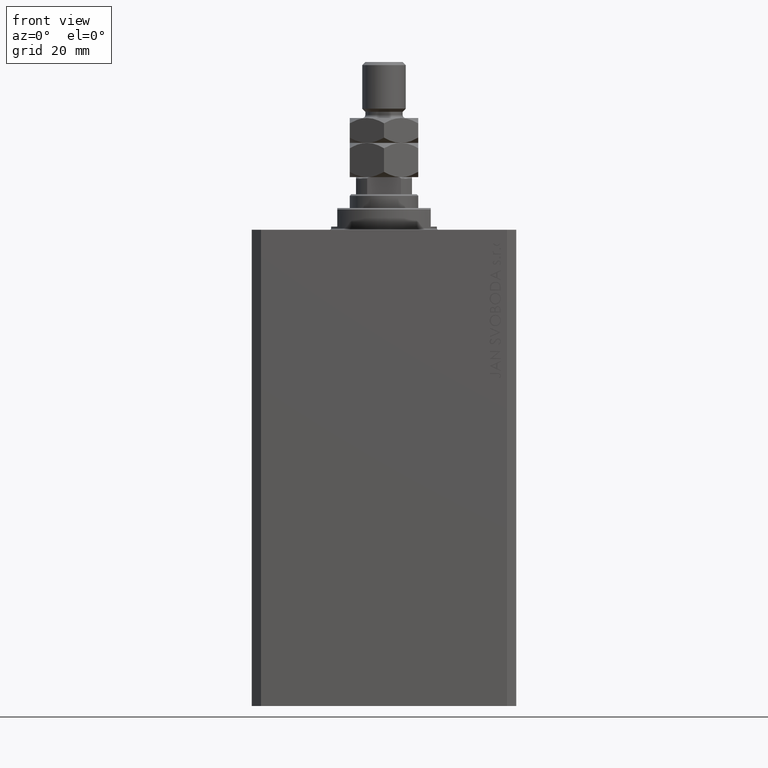
[diagram: clean part render]
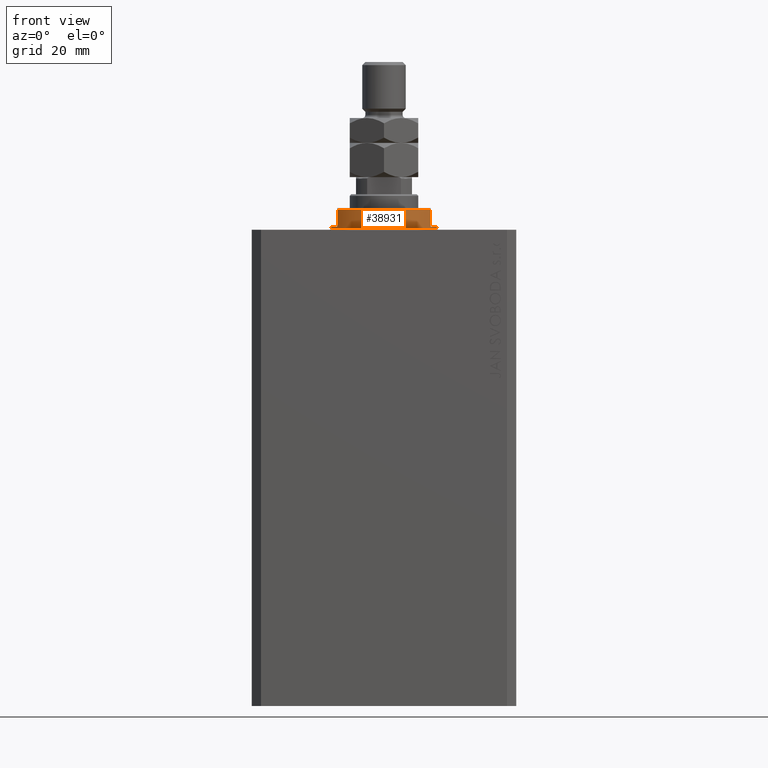
[diagram: same view with one face highlighted and labeled with its STEP entity id]
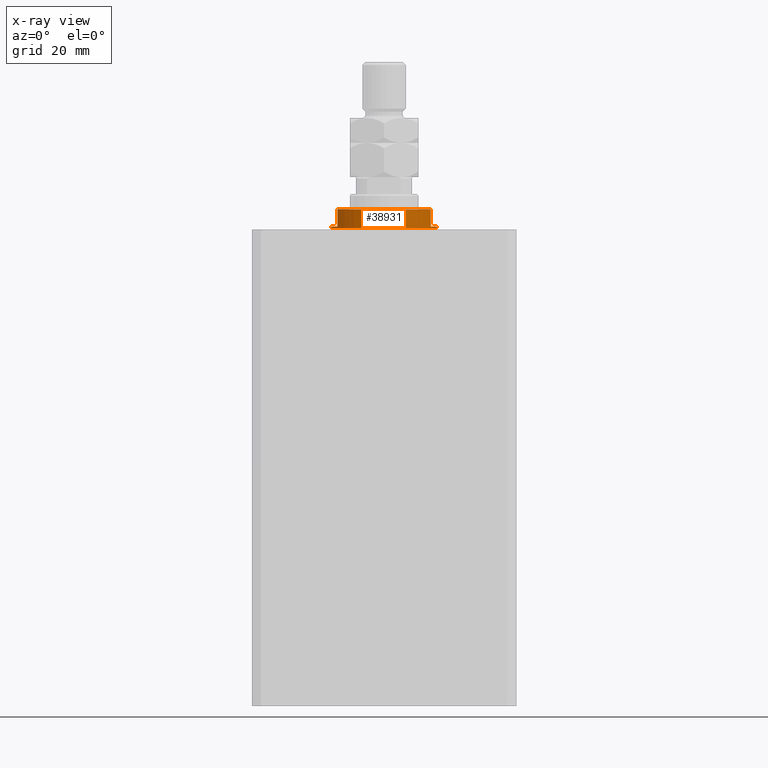
[diagram: x-ray of the same camera — body ghosted, the highlighted face saturated]
A machine part, front view. The second image highlights one B-rep face of the part: STEP entity #38931.
The next image is the same camera in x-ray: the body ghosted, the highlighted face saturated — about 0% of this face is hidden behind the body in this view.
In plain terms, the highlighted cylindrical surface (partial cylindrical patch) has radius 17 mm, axis along (0, 0, -1).
Its self-contained STEP definition (entity closure, byte-faithful):
#318 = VERTEX_POINT ( 'NONE', #43536 ) ;
#1721 = AXIS2_PLACEMENT_3D ( 'NONE', #29190, #3235, #40579 ) ;
#1933 = EDGE_LOOP ( 'NONE', ( #36304, #40494, #31104, #47067, #39159, #5508, #18224, #35126 ) ) ;
#3235 = DIRECTION ( 'NONE',  ( 0.000000000000000000, 0.000000000000000000, -1.000000000000000000 ) ) ;
#3497 = DIRECTION ( 'NONE',  ( 1.000000000000000000, 0.000000000000000000, 0.000000000000000000 ) ) ;
#5508 = ORIENTED_EDGE ( 'NONE', *, *, #39599, .F. ) ;
#5635 = CARTESIAN_POINT ( 'NONE',  ( -15.00000000000000000, -8.000000000000001776, -6.500000000000000888 ) ) ;
#5878 = LINE ( 'NONE', #21679, #25723 ) ;
#6684 = EDGE_CURVE ( 'NONE', #32657, #46617, #43749, .T. ) ;
#7260 = VECTOR ( 'NONE', #36969, 1000.000000000000000 ) ;
#7842 = DIRECTION ( 'NONE',  ( 0.000000000000000000, 0.000000000000000000, -1.000000000000000000 ) ) ;
#8052 = CIRCLE ( 'NONE', #1721, 17.00000000000000000 ) ;
#8074 = EDGE_CURVE ( 'NONE', #33419, #10398, #42987, .T. ) ;
#10398 = VERTEX_POINT ( 'NONE', #45542 ) ;
#10537 = DIRECTION ( 'NONE',  ( -0.000000000000000000, -0.000000000000000000, 1.000000000000000000 ) ) ;
#11200 = CARTESIAN_POINT ( 'NONE',  ( 0.000000000000000000, 0.000000000000000000, -6.500000000000000000 ) ) ;
#11741 = EDGE_CURVE ( 'NONE', #10398, #46617, #5878, .T. ) ;
#11818 = CARTESIAN_POINT ( 'NONE',  ( 0.000000000000000000, 0.000000000000000000, -7.000000000000000000 ) ) ;
#12895 = DIRECTION ( 'NONE',  ( -1.000000000000000000, 0.000000000000000000, 0.000000000000000000 ) ) ;
#13239 = VECTOR ( 'NONE', #35270, 1000.000000000000000 ) ;
#14492 = CARTESIAN_POINT ( 'NONE',  ( 17.00000000000000000, 0.000000000000000000, -7.000000000000000000 ) ) ;
#15449 = CARTESIAN_POINT ( 'NONE',  ( -17.00000000000000000, 2.081899558550500280E-15, -0.4999999999999995559 ) ) ;
#15621 = VERTEX_POINT ( 'NONE', #5635 ) ;
#16796 = EDGE_CURVE ( 'NONE', #33419, #15621, #20655, .T. ) ;
#17636 = AXIS2_PLACEMENT_3D ( 'NONE', #37348, #45045, #3497 ) ;
#17947 = LINE ( 'NONE', #14492, #23904 ) ;
#18224 = ORIENTED_EDGE ( 'NONE', *, *, #42521, .T. ) ;
#19356 = DIRECTION ( 'NONE',  ( 0.000000000000000000, 0.000000000000000000, 1.000000000000000000 ) ) ;
#19474 = DIRECTION ( 'NONE',  ( 1.000000000000000000, 0.000000000000000000, 0.000000000000000000 ) ) ;
#20655 = LINE ( 'NONE', #47137, #13239 ) ;
#21679 = CARTESIAN_POINT ( 'NONE',  ( -17.00000000000000000, 2.081899558550500280E-15, -7.000000000000000000 ) ) ;
#22998 = AXIS2_PLACEMENT_3D ( 'NONE', #11818, #42002, #19474 ) ;
#23904 = VECTOR ( 'NONE', #10537, 1000.000000000000000 ) ;
#24010 = AXIS2_PLACEMENT_3D ( 'NONE', #34780, #7842, #30588 ) ;
#25723 = VECTOR ( 'NONE', #40240, 1000.000000000000000 ) ;
#28768 = CARTESIAN_POINT ( 'NONE',  ( 17.00000000000000000, 0.000000000000000000, -0.4999999999999995559 ) ) ;
#29190 = CARTESIAN_POINT ( 'NONE',  ( 0.000000000000000000, 0.000000000000000000, -1.000000000000000000 ) ) ;
#30588 = DIRECTION ( 'NONE',  ( -1.000000000000000000, 0.000000000000000000, 0.000000000000000000 ) ) ;
#31104 = ORIENTED_EDGE ( 'NONE', *, *, #16796, .T. ) ;
#32159 = EDGE_CURVE ( 'NONE', #15621, #42096, #37544, .T. ) ;
#32192 = CARTESIAN_POINT ( 'NONE',  ( 15.00000000000000000, -8.000000000000001776, -6.500000000000000000 ) ) ;
#32657 = VERTEX_POINT ( 'NONE', #28768 ) ;
#33419 = VERTEX_POINT ( 'NONE', #44990 ) ;
#33601 = AXIS2_PLACEMENT_3D ( 'NONE', #11200, #19356, #12895 ) ;
#34780 = CARTESIAN_POINT ( 'NONE',  ( 0.000000000000000000, 0.000000000000000000, -1.000000000000000000 ) ) ;
#35126 = ORIENTED_EDGE ( 'NONE', *, *, #6684, .T. ) ;
#35270 = DIRECTION ( 'NONE',  ( 0.000000000000000000, 0.000000000000000000, -1.000000000000000000 ) ) ;
#35391 = CARTESIAN_POINT ( 'NONE',  ( 14.99999999999999645, -8.000000000000003553, -1.000000000000000000 ) ) ;
#36304 = ORIENTED_EDGE ( 'NONE', *, *, #11741, .F. ) ;
#36732 = CARTESIAN_POINT ( 'NONE',  ( 15.00000000000000000, -8.000000000000001776, -7.000000000000000000 ) ) ;
#36969 = DIRECTION ( 'NONE',  ( 0.000000000000000000, 0.000000000000000000, -1.000000000000000000 ) ) ;
#37348 = CARTESIAN_POINT ( 'NONE',  ( 0.000000000000000000, 0.000000000000000000, -0.4999999999999995559 ) ) ;
#37544 = CIRCLE ( 'NONE', #33601, 17.00000000000000000 ) ;
#38931 = ADVANCED_FACE ( 'NONE', ( #48693 ), #45217, .T. ) ;
#39159 = ORIENTED_EDGE ( 'NONE', *, *, #40591, .F. ) ;
#39599 = EDGE_CURVE ( 'NONE', #318, #48878, #8052, .T. ) ;
#40240 = DIRECTION ( 'NONE',  ( -0.000000000000000000, -0.000000000000000000, 1.000000000000000000 ) ) ;
#40494 = ORIENTED_EDGE ( 'NONE', *, *, #8074, .F. ) ;
#40579 = DIRECTION ( 'NONE',  ( -1.000000000000000000, 0.000000000000000000, 0.000000000000000000 ) ) ;
#40591 = EDGE_CURVE ( 'NONE', #48878, #42096, #44916, .T. ) ;
#42002 = DIRECTION ( 'NONE',  ( -0.000000000000000000, -0.000000000000000000, 1.000000000000000000 ) ) ;
#42096 = VERTEX_POINT ( 'NONE', #32192 ) ;
#42521 = EDGE_CURVE ( 'NONE', #318, #32657, #17947, .T. ) ;
#42987 = CIRCLE ( 'NONE', #24010, 17.00000000000000000 ) ;
#43536 = CARTESIAN_POINT ( 'NONE',  ( 17.00000000000000000, 0.000000000000000000, -1.000000000000000000 ) ) ;
#43749 = CIRCLE ( 'NONE', #17636, 17.00000000000000000 ) ;
#44916 = LINE ( 'NONE', #36732, #7260 ) ;
#44990 = CARTESIAN_POINT ( 'NONE',  ( -14.99999999999999645, -8.000000000000003553, -1.000000000000000000 ) ) ;
#45045 = DIRECTION ( 'NONE',  ( -0.000000000000000000, -0.000000000000000000, -1.000000000000000000 ) ) ;
#45217 = CYLINDRICAL_SURFACE ( 'NONE', #22998, 17.00000000000000000 ) ;
#45542 = CARTESIAN_POINT ( 'NONE',  ( -17.00000000000000000, 2.081899558550500280E-15, -1.000000000000000000 ) ) ;
#46617 = VERTEX_POINT ( 'NONE', #15449 ) ;
#47067 = ORIENTED_EDGE ( 'NONE', *, *, #32159, .T. ) ;
#47137 = CARTESIAN_POINT ( 'NONE',  ( -15.00000000000000000, -8.000000000000001776, -7.000000000000000000 ) ) ;
#48693 = FACE_OUTER_BOUND ( 'NONE', #1933, .T. ) ;
#48878 = VERTEX_POINT ( 'NONE', #35391 ) ;